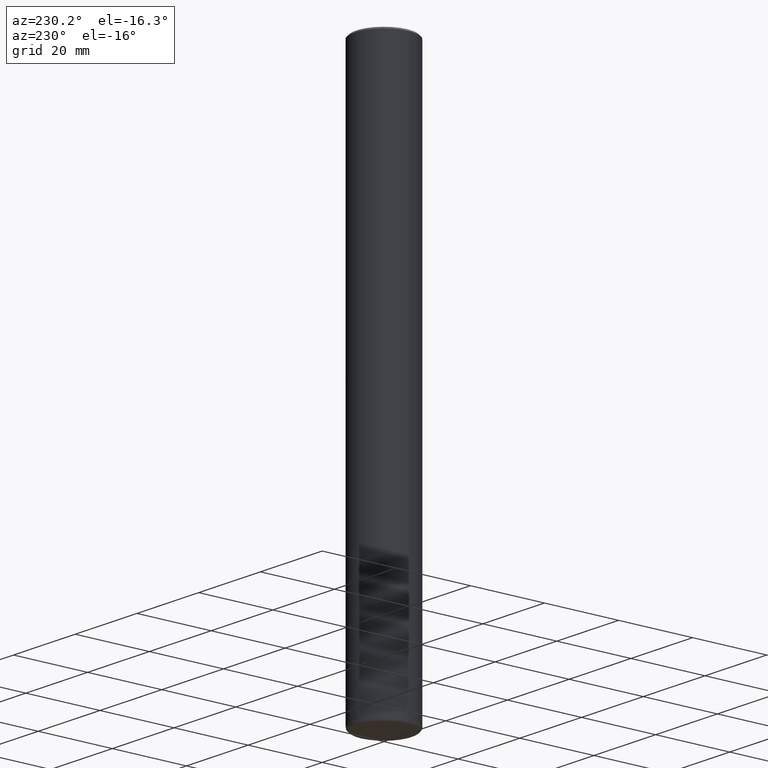
[diagram: clean part render]
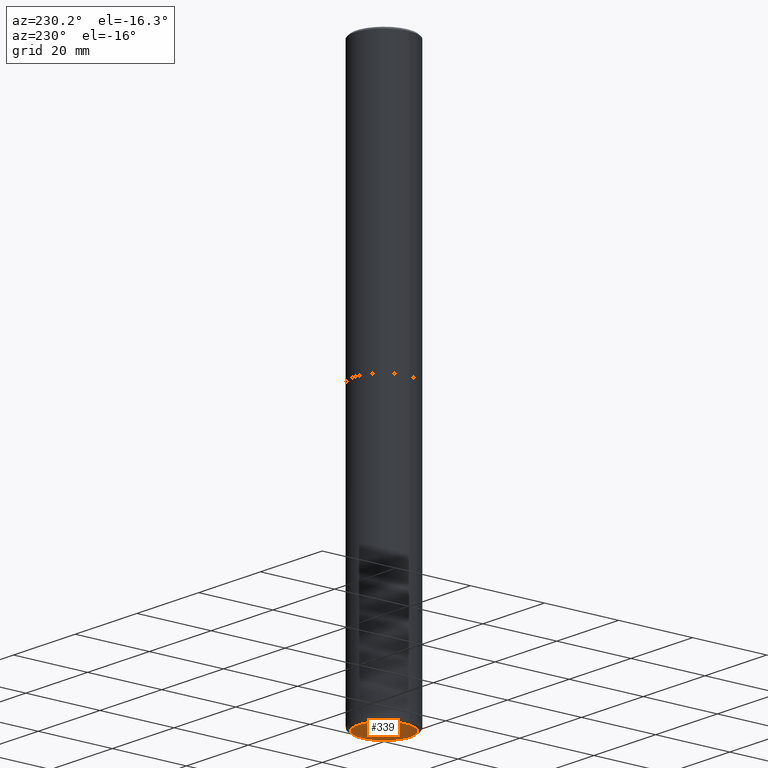
[diagram: same view with one face highlighted and labeled with its STEP entity id]
A machine part, auxiliary view. The second image highlights one B-rep face of the part: STEP entity #339.
In plain terms, the highlighted planar face has unit normal (0, -0, -1).
Its self-contained STEP definition (entity closure, byte-faithful):
#20 = DIRECTION ( 'NONE',  ( -2.445468806185136597E-29, 3.491481338843145583E-15, 1.000000000000000000 ) ) ;
#30 = ORIENTED_EDGE ( 'NONE', *, *, #251, .F. ) ;
#54 = CARTESIAN_POINT ( 'NONE',  ( 1.444171603492632270E-28, -2.061894304653819197E-14, -5.905499999999999972 ) ) ;
#76 = EDGE_CURVE ( 'NONE', #132, #198, #307, .T. ) ;
#83 = AXIS2_PLACEMENT_3D ( 'NONE', #54, #20, #248 ) ;
#124 = AXIS2_PLACEMENT_3D ( 'NONE', #334, #302, #299 ) ;
#128 = CARTESIAN_POINT ( 'NONE',  ( 0.2755500000000000171, -2.254309841237464499E-14, -5.905499999999999972 ) ) ;
#132 = VERTEX_POINT ( 'NONE', #128 ) ;
#133 = DIRECTION ( 'NONE',  ( 2.438088387897960049E-29, -3.491481338843145188E-15, -1.000000000000000000 ) ) ;
#137 = FACE_OUTER_BOUND ( 'NONE', #382, .T. ) ;
#198 = VERTEX_POINT ( 'NONE', #280 ) ;
#228 = DIRECTION ( 'NONE',  ( -1.000000000000000000, 6.982962677686265922E-15, -4.876176775795935793E-29 ) ) ;
#248 = DIRECTION ( 'NONE',  ( 1.000000000000000000, -6.982962677686268288E-15, 0.000000000000000000 ) ) ;
#251 = EDGE_CURVE ( 'NONE', #198, #132, #388, .T. ) ;
#259 = PLANE ( 'NONE',  #261 ) ;
#261 = AXIS2_PLACEMENT_3D ( 'NONE', #289, #133, #228 ) ;
#280 = CARTESIAN_POINT ( 'NONE',  ( -0.2755500000000000171, -1.845228343683128963E-14, -5.905499999999999972 ) ) ;
#289 = CARTESIAN_POINT ( 'NONE',  ( 1.444171603492632270E-28, -2.061894304653819197E-14, -5.905499999999999972 ) ) ;
#299 = DIRECTION ( 'NONE',  ( 1.000000000000000000, -6.982962677686268288E-15, 0.000000000000000000 ) ) ;
#302 = DIRECTION ( 'NONE',  ( -2.445468806185136597E-29, 3.491481338843145583E-15, 1.000000000000000000 ) ) ;
#307 = CIRCLE ( 'NONE', #124, 0.2755500000000000171 ) ;
#334 = CARTESIAN_POINT ( 'NONE',  ( 1.444171603492632270E-28, -2.061894304653819197E-14, -5.905499999999999972 ) ) ;
#339 = ADVANCED_FACE ( 'NONE', ( #137 ), #259, .T. ) ;
#371 = ORIENTED_EDGE ( 'NONE', *, *, #76, .F. ) ;
#382 = EDGE_LOOP ( 'NONE', ( #371, #30 ) ) ;
#388 = CIRCLE ( 'NONE', #83, 0.2755500000000000171 ) ;